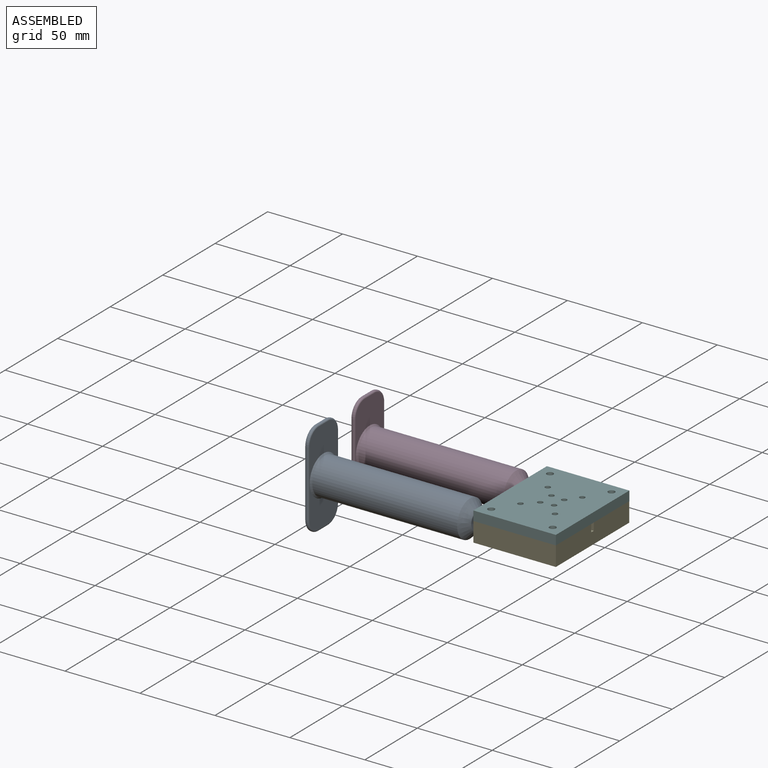
[diagram: assembled view]
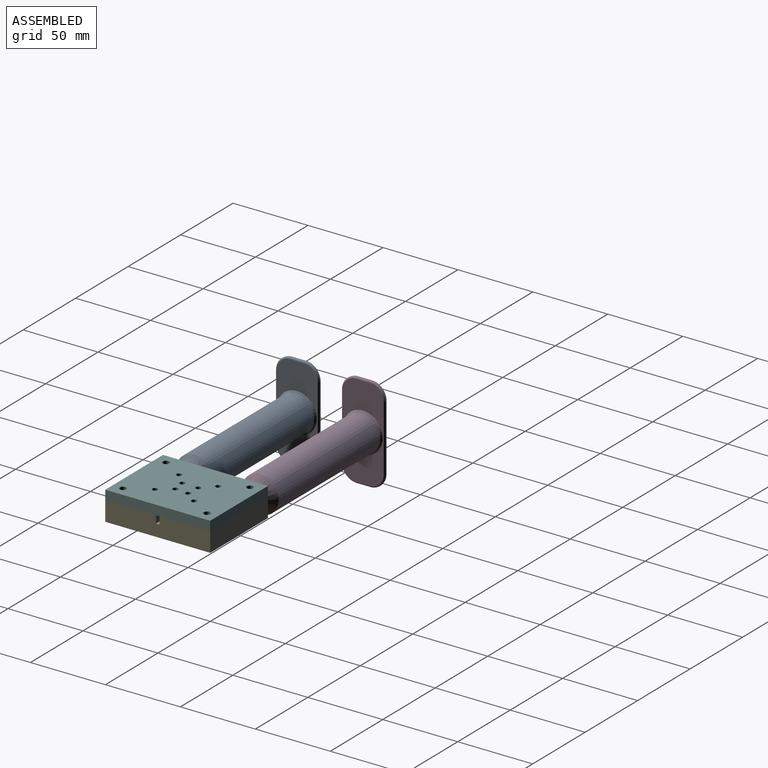
[diagram: assembled view, second angle]
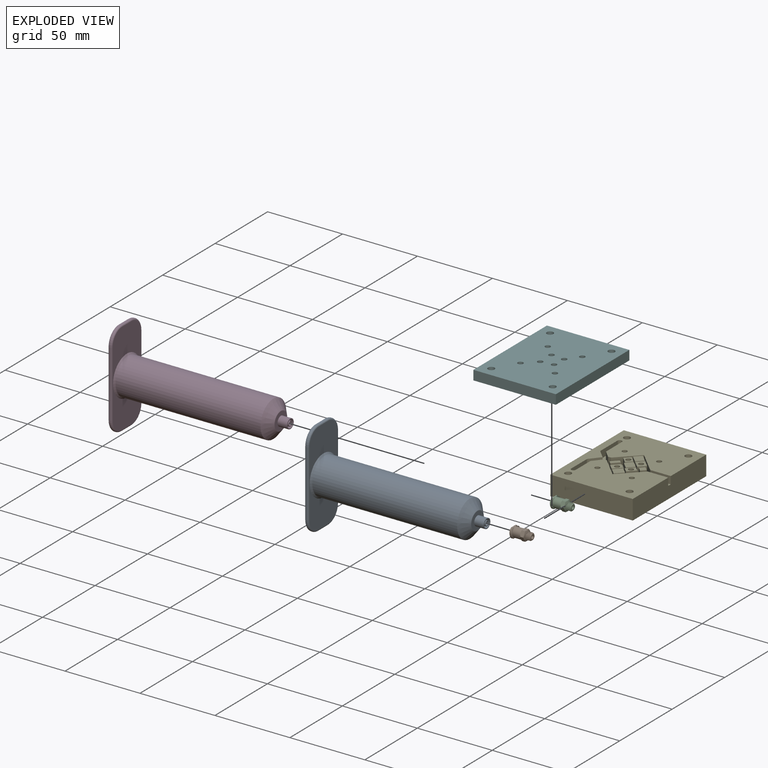
[diagram: exploded view]
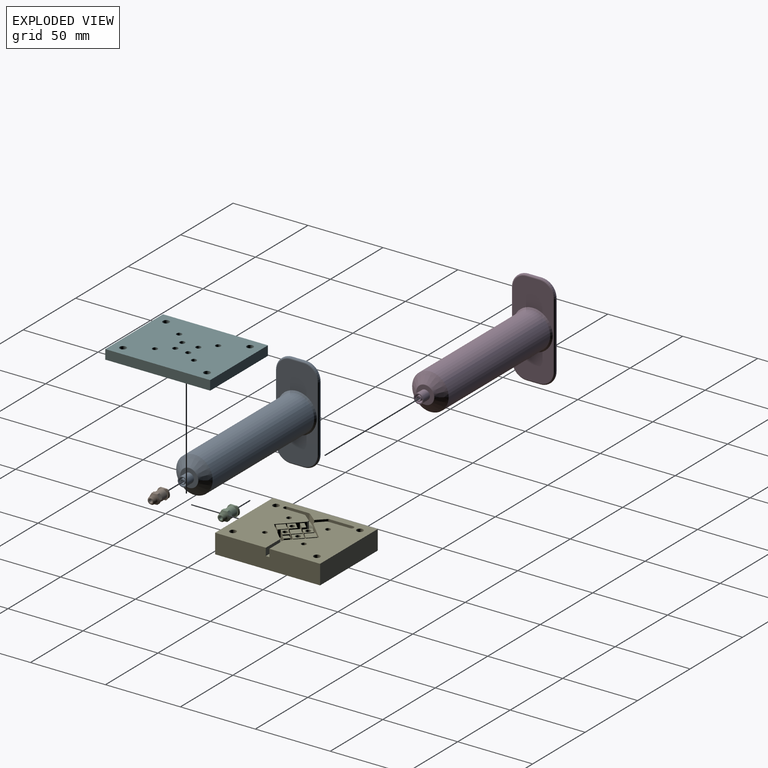
[diagram: exploded view, second angle]
ASSEMBLY  parts=6 mates=5
PART A: 43 faces, bbox 65.7x111.6x30.6 mm
  f0: cylinder r=9.65mm len=98.02mm, axis (0,1,0), area 5944.5mm2, adj f1,f40
  f1: cone r=5.15mm half-angle=50.7deg, axis (0,-1,0), area 270.4mm2, adj f0,f2
  f2: plane 10.3x10.3mm, normal (0,-1,0), area 83.3mm2, adj f1
  f3: plane 8.96x0.5mm, normal (-1,0,0), area 4.5mm2, adj f4,f10,f25,f38
  f4: cylinder r=10mm len=10mm, axis (0,1,0), area 7.9mm2, adj f3,f5,f27,f36
  f5: plane 44.08x0.5mm, normal (0,0,-1), area 22mm2, adj f4,f6,f29,f34
  f6: cylinder r=10mm len=10mm, axis (0,1,0), area 7.9mm2, adj f5,f7,f31,f32
  f7: plane 8.96x0.5mm, normal (1,0,0), area 4.5mm2, adj f6,f8,f30,f33
  f8: cylinder r=10mm len=10mm, axis (0,1,0), area 7.9mm2, adj f7,f9,f28,f35
  f9: plane 44.08x0.5mm, normal (0,0,1), area 22mm2, adj f8,f10,f26,f37
  f10: cylinder r=10mm len=10mm, axis (0,1,0), area 7.9mm2, adj f3,f9,f24,f39
  f11: plane 62.08x26.96mm, normal (0,-1,0), area 1247.5mm2, adj f32,f33,f34,f35,f36,f37,f38,f39
  f12: plane 62.08x26.96mm, normal (0,1,0), area 1057.3mm2, adj f24,f25,f26,f27,f28,f29,f30,f31
  f13: plane 11.76x11.76mm, normal (0,1,0), area 76.9mm2, adj f17,f41
  f14: cone r=12.19mm half-angle=50.7deg, axis (0,-1,0), area 447.5mm2, adj f15,f41
  f15: cylinder r=12.19mm len=96.72mm, axis (0,1,0), area 7409.5mm2, adj f14,f42
  f16: cylinder r=2.61mm len=6.35mm, axis (0,-1,0), area 104.3mm2, adj f18,f19
  f17: cylinder r=3.17mm len=6.35mm, axis (0,-1,0), area 126.7mm2, adj f13,f18
  f18: plane 6.35x6.35mm, normal (0,1,0), area 10.2mm2, adj f16,f17
  f19: plane 5.23x5.23mm, normal (0,1,0), area 12.6mm2, adj f16,f21
  f20: cylinder r=1.19mm len=6.35mm, axis (0,-1,0), area 47.6mm2, adj f22,f23
  f21: cylinder r=1.68mm len=6.35mm, axis (0,-1,0), area 67mm2, adj f19,f22
  f22: plane 3.36x3.36mm, normal (0,1,0), area 4.4mm2, adj f20,f21
  f23: plane 2.39x2.39mm, normal (0,1,0), area 4.5mm2, adj f20
  f24: torus R=9mm, axis (0,-1,0), area 23.8mm2, adj f10,f12,f25,f26
  f25: cylinder r=1mm len=8.96mm, axis (0,0,-1), area 14.1mm2, adj f3,f12,f24,f27
  f26: cylinder r=1mm len=44.08mm, axis (-1,0,0), area 69.2mm2, adj f9,f12,f24,f28
  f27: torus R=9mm, axis (0,-1,0), area 23.8mm2, adj f4,f12,f25,f29
  f28: torus R=9mm, axis (0,-1,0), area 23.8mm2, adj f8,f12,f26,f30
  f29: cylinder r=1mm len=44.08mm, axis (1,0,0), area 69.2mm2, adj f5,f12,f27,f31
  f30: cylinder r=1mm len=8.96mm, axis (0,0,1), area 14.1mm2, adj f7,f12,f28,f31
  f31: torus R=9mm, axis (0,-1,0), area 23.8mm2, adj f6,f12,f29,f30
  f32: torus R=9mm, axis (0,-1,0), area 23.8mm2, adj f6,f11,f33,f34
  f33: cylinder r=1mm len=8.96mm, axis (0,0,-1), area 14.1mm2, adj f7,f11,f32,f35
  f34: cylinder r=1mm len=44.08mm, axis (-1,0,0), area 69.2mm2, adj f5,f11,f32,f36
  f35: torus R=9mm, axis (0,-1,0), area 23.8mm2, adj f8,f11,f33,f37
  f36: torus R=9mm, axis (0,-1,0), area 23.8mm2, adj f4,f11,f34,f38
  f37: cylinder r=1mm len=44.08mm, axis (1,0,0), area 69.2mm2, adj f9,f11,f35,f39
  f38: cylinder r=1mm len=8.96mm, axis (0,0,1), area 14.1mm2, adj f3,f11,f36,f39
  f39: torus R=9mm, axis (0,-1,0), area 23.8mm2, adj f10,f11,f37,f38
  f40: torus R=10.65mm, axis (0,-1,0), area 98.8mm2, adj f0,f11
  f41: torus R=5.88mm, axis (0,1,0), area 13mm2, adj f13,f14
  f42: cone r=13.19mm half-angle=45deg, axis (0,-1,0), area 112.8mm2, adj f12,f15
PART B: 47 faces, bbox 8.8x14.1x8.4 mm
  f0: bspline ~4.83x4.83mm, area 33.9mm2, adj f1,f2,f3,f11,f12
  f1: bspline ~4.83x4.83mm, area 34mm2, adj f0,f2,f3,f11,f12
  f2: cylinder r=1.81mm len=3.62mm, axis (0,-1,0), area 4.5mm2, adj f0,f1,f3,f12
  f3: cone r=1.81mm half-angle=45deg, axis (0,-1,0), area 4.7mm2, adj f0,f1,f2,f4
  f4: plane 3.62x3.62mm, normal (0,1,0), area 5.8mm2, adj f3,f40
  f5: plane 3.53x3.01mm, normal (-0.87,0,0.5), area 8.9mm2, adj f6,f10,f11,f14,f15
  f6: plane 4.03x3.01mm, normal (0,0,1), area 8.9mm2, adj f5,f7,f11,f13,f14
  f7: plane 3.53x3.01mm, normal (0.87,0,0.5), area 8.9mm2, adj f6,f8,f11,f13,f18
  f8: plane 3.53x3.01mm, normal (0.87,0,-0.5), area 8.9mm2, adj f7,f9,f11,f17,f18
  f9: plane 4.03x3.01mm, normal (0,0,-1), area 8.9mm2, adj f8,f10,f11,f16,f17
  f10: plane 3.53x3.01mm, normal (-0.87,0,-0.5), area 8.9mm2, adj f5,f9,f11,f15,f16
  f11: cone r=3.67mm half-angle=70deg, axis (0,-1,0), area 21.5mm2, adj f0,f1,f5,f6,f7,f8,f9,f10
  f12: plane 4.25x2.77mm, normal (0,1,0), area 1.1mm2, adj f0,f1,f2,f11
  f13: cone r=3.17mm half-angle=45deg, axis (0,1,0), area 1.2mm2, adj f6,f7,f19
  f14: cone r=3.17mm half-angle=45deg, axis (0,1,0), area 1.2mm2, adj f5,f6,f19
  f15: cone r=3.17mm half-angle=45deg, axis (0,1,0), area 1.2mm2, adj f5,f10,f19
  f16: cone r=3.17mm half-angle=45deg, axis (0,1,0), area 1.2mm2, adj f9,f10,f19
  f17: cone r=3.17mm half-angle=45deg, axis (0,1,0), area 1.2mm2, adj f8,f9,f19
  f18: cone r=3.17mm half-angle=45deg, axis (0,1,0), area 1.2mm2, adj f7,f8,f19
  f19: cylinder r=3.17mm len=6.35mm, axis (0,1,0), area 98.8mm2, adj f13,f14,f15,f16,f17,f18,f29,f32
  f20: cylinder r=0.76mm len=1.11mm, axis (0,-1,0), area 0.6mm2, adj f25,f28,f31,f34
  f21: cylinder r=0.76mm len=1.19mm, axis (0,-1,0), area 0.6mm2, adj f24,f34,f35,f37
  f22: cylinder r=0.76mm len=0.73mm, axis (0,-1,0), area 0.4mm2, adj f24,f27,f32,f36
  f23: cylinder r=0.76mm len=0.65mm, axis (0,-1,0), area 0.3mm2, adj f25,f30,f31,f33
  f24: plane 4.5x1.67mm, normal (0,0,1), area 4.7mm2, adj f21,f22,f27,f32,f35,f37
  f25: plane 4.5x1.59mm, normal (0,0,-1), area 4.4mm2, adj f20,f23,f28,f31,f33
  f26: plane 1.9x0.29mm, normal (0,0,-1), area 0.1mm2, adj f27,f32
  f27: bspline ~8.03x4.22mm, area 6.9mm2, adj f22,f24,f26,f29,f32,f36
  f28: bspline ~6.83x4.22mm, area 4mm2, adj f20,f25,f29,f34,f37
  f29: cylinder r=3.17mm len=6.35mm, axis (0,1,0), area 6.4mm2, adj f19,f27,f28,f31,f33,f35
  f30: cylinder r=3.94mm len=4.74mm, axis (0,-1,0), area 1.4mm2, adj f23,f31,f33
  f31: plane 7.86x6.53mm, normal (0,-1,0), area 25.8mm2, adj f20,f23,f25,f29,f30,f33,f34,f35
  f32: plane 6.39x3.98mm, normal (0,1,0), area 5.9mm2, adj f19,f22,f24,f26,f27,f36
  f33: bspline ~8.03x5.46mm, area 6.3mm2, adj f23,f25,f29,f30,f31
  f34: cylinder r=3.94mm len=5.98mm, axis (0,-1,0), area 8.5mm2, adj f20,f21,f28,f31,f35,f37
  f35: bspline ~6.07x5.03mm, area 3.3mm2, adj f21,f24,f29,f31,f34
  f36: cylinder r=3.94mm len=5.45mm, axis (0,-1,0), area 1.9mm2, adj f22,f27,f32
  f37: plane 4.42x3.74mm, normal (0,1,0), area 2.7mm2, adj f19,f21,f24,f28,f34
  f38: cone r=2.16mm half-angle=1deg, axis (0,-1,0), area 93.7mm2, adj f31,f39
  f39: plane 4.07x4.07mm, normal (0,-1,0), area 8.5mm2, adj f38,f40
  f40: cylinder r=1.19mm len=5.74mm, axis (0,1,0), area 43.1mm2, adj f4,f39
  f41: plane 0.25x0.22mm, normal (-1,0,0), area 0mm2, adj f42,f43,f44,f45,f46
  f42: cylinder r=1.81mm len=1.47mm, axis (0,-1,0), area 0.1mm2, adj f41,f43,f44,f45
  f43: cylinder r=3.49mm len=0.3mm, axis (0.19,-0.5,0.84), area 0mm2, adj f41,f42,f45
  f44: bspline ~3.2x2.46mm, area 0.7mm2, adj f41,f42,f45,f46
  f45: plane 2.83x2.08mm, normal (0,-1,0), area 0.6mm2, adj f41,f42,f43,f44,f46
  f46: cone r=2.16mm half-angle=1deg, axis (0,-1,0), area 0.5mm2, adj f41,f44,f45
PART C: same geometry as B
PART D: same geometry as A
PART E: 145 faces, bbox 55.3x70.3x13.3 mm
  f0: cylinder r=1.63mm len=9.83mm, axis (0,0,1), area 100.7mm2, adj f64,f140
  f1: cylinder r=1.63mm len=9.83mm, axis (0,0,1), area 100.7mm2, adj f54,f133
  f2: cylinder r=1.63mm len=9.83mm, axis (0,0,1), area 100.7mm2, adj f39,f126
  f3: cylinder r=1.63mm len=9.83mm, axis (0,0,1), area 100.7mm2, adj f29,f119
  f4: cylinder r=1.63mm len=9.83mm, axis (0,0,1), area 100.7mm2, adj f11,f112
  f5: cylinder r=1.63mm len=9.83mm, axis (0,0,1), area 100.7mm2, adj f11,f105
  f6: cylinder r=1.63mm len=9.83mm, axis (0,0,1), area 100.7mm2, adj f11,f98
  f7: cylinder r=1.63mm len=9.83mm, axis (0,0,1), area 100.7mm2, adj f11,f91
  f8: plane 70x13mm, normal (1,0,0), area 898mm2, adj f11,f18,f19,f21,f22,f83,f84
  f9: plane 13.8x13.8mm, normal (-0.71,-0.71,0), area 97.6mm2, adj f11,f18,f23,f83
  f10: plane 12.98x12.98mm, normal (0.71,0.71,0), area 91.8mm2, adj f11,f18,f24,f81
  f11: plane 70x55mm, normal (0,0,1), area 3122.8mm2, adj f4,f5,f6,f7,f8,f9,f10,f19
  f12: plane 5x2.56mm, normal (0.71,-0.71,0), area 18.1mm2, adj f18,f66,f67,f82
  f13: plane 5x2.56mm, normal (0.71,0.71,0), area 18.1mm2, adj f18,f65,f67,f82
  f14: cone r=0mm half-angle=59deg, axis (-1,0,0), area 14.1mm2, adj f15,f18
  f15: cylinder r=2.02mm len=6.5mm, axis (-1,0,0), area 78.2mm2, adj f14,f18,f20,f71,f72
  f16: cone r=0mm half-angle=59deg, axis (-1,0,0), area 14.1mm2, adj f17,f18
  f17: cylinder r=2.02mm len=6.5mm, axis (-1,0,0), area 78.2mm2, adj f16,f18,f20,f77,f78
  f18: plane 50.49x47.34mm, normal (0,0,1), area 372.7mm2, adj f8,f9,f10,f12,f13,f14,f15,f16
  f19: plane 55x13mm, normal (0,1,0), area 715mm2, adj f8,f11,f20,f22
  f20: plane 70x13mm, normal (-1,0,0), area 884.4mm2, adj f11,f15,f17,f19,f21,f22
  f21: plane 55x13mm, normal (0,-1,0), area 715mm2, adj f8,f11,f20,f22
  f22: plane 70x55mm, normal (0,0,-1), area 3502.3mm2, adj f8,f19,f20,f21,f85,f86,f87,f88
  f23: plane 12.98x12.98mm, normal (0.71,-0.71,0), area 91.8mm2, adj f9,f11,f18,f68
  f24: plane 13.8x13.8mm, normal (-0.71,0.71,0), area 97.6mm2, adj f10,f11,f18,f84
  f25: plane 5x3.94mm, normal (0.71,0.71,0), area 27.9mm2, adj f18,f26,f28,f29
  f26: plane 5x3.38mm, normal (-0.71,0.71,0), area 23.9mm2, adj f18,f25,f27,f29
  f27: plane 5x3.94mm, normal (-0.71,-0.71,0), area 27.8mm2, adj f18,f26,f28,f29
  f28: plane 5x3.38mm, normal (0.71,-0.71,0), area 23.9mm2, adj f18,f25,f27,f29
  f29: plane 7.31x7.31mm, normal (0,0,1), area 18.2mm2, adj f3,f25,f26,f27,f28
  f30: plane 5x4.15mm, normal (0.71,-0.71,0), area 29.4mm2, adj f18,f31,f33,f34
  f31: plane 5x1.82mm, normal (0.71,0.71,0), area 12.9mm2, adj f18,f30,f32,f34
  f32: plane 5x4.15mm, normal (-0.71,0.71,0), area 29.3mm2, adj f18,f31,f33,f34
  f33: plane 5x1.82mm, normal (-0.71,-0.71,0), area 12.9mm2, adj f18,f30,f32,f34
  f34: plane 5.97x5.97mm, normal (0,0,1), area 15.1mm2, adj f30,f31,f32,f33
  f35: plane 5x3.38mm, normal (0.71,0.71,0), area 23.9mm2, adj f18,f36,f38,f39
  f36: plane 5x4.49mm, normal (-0.71,0.71,0), area 31.7mm2, adj f18,f35,f37,f39
  f37: plane 5x3.38mm, normal (-0.71,-0.71,0), area 23.9mm2, adj f18,f36,f38,f39
  f38: plane 5x4.49mm, normal (0.71,-0.71,0), area 31.7mm2, adj f18,f35,f37,f39
  f39: plane 7.87x7.87mm, normal (0,0,1), area 21.9mm2, adj f2,f35,f36,f37,f38
  f40: plane 5x4.47mm, normal (0.71,0.71,0), area 31.6mm2, adj f18,f41,f43,f44
  f41: plane 5x3.94mm, normal (-0.71,0.71,0), area 27.9mm2, adj f18,f40,f42,f44
  f42: plane 5x4.47mm, normal (-0.71,-0.71,0), area 31.6mm2, adj f18,f41,f43,f44
  f43: plane 5x3.94mm, normal (0.71,-0.71,0), area 27.9mm2, adj f18,f40,f42,f44
  f44: plane 8.41x8.41mm, normal (0,0,1), area 35.2mm2, adj f40,f41,f42,f43
  f45: plane 5x3.94mm, normal (0.71,-0.71,0), area 27.9mm2, adj f18,f46,f48,f49
  f46: plane 5x4.47mm, normal (0.71,0.71,0), area 31.6mm2, adj f18,f45,f47,f49
  f47: plane 5x3.94mm, normal (-0.71,0.71,0), area 27.9mm2, adj f18,f46,f48,f49
  f48: plane 5x4.47mm, normal (-0.71,-0.71,0), area 31.6mm2, adj f18,f45,f47,f49
  f49: plane 8.41x8.41mm, normal (0,0,1), area 35.2mm2, adj f45,f46,f47,f48
  f50: plane 5x3.94mm, normal (-0.71,0.71,0), area 27.9mm2, adj f18,f51,f53,f54
  f51: plane 5x4.47mm, normal (-0.71,-0.71,0), area 31.6mm2, adj f18,f50,f52,f54
  f52: plane 5x3.94mm, normal (0.71,-0.71,0), area 27.9mm2, adj f18,f51,f53,f54
  f53: plane 5x4.47mm, normal (0.71,0.71,0), area 31.6mm2, adj f18,f50,f52,f54
  f54: plane 8.41x8.41mm, normal (0,0,1), area 26.9mm2, adj f1,f50,f51,f52,f53
  f55: plane 5x3.94mm, normal (0.71,0.71,0), area 27.9mm2, adj f18,f56,f58,f59
  f56: plane 5x4.47mm, normal (-0.71,0.71,0), area 31.6mm2, adj f18,f55,f57,f59
  f57: plane 5x3.94mm, normal (-0.71,-0.71,0), area 27.9mm2, adj f18,f56,f58,f59
  f58: plane 5x4.47mm, normal (0.71,-0.71,0), area 31.6mm2, adj f18,f55,f57,f59
  f59: plane 8.41x8.41mm, normal (0,0,1), area 35.2mm2, adj f55,f56,f57,f58
  f60: plane 5x4.47mm, normal (0.71,-0.71,0), area 31.6mm2, adj f18,f61,f63,f64
  f61: plane 5x2.84mm, normal (0.71,0.71,0), area 20.1mm2, adj f18,f60,f62,f64
  f62: plane 5x4.47mm, normal (-0.71,0.71,0), area 31.6mm2, adj f18,f61,f63,f64
  f63: plane 5x2.84mm, normal (-0.71,-0.71,0), area 20.1mm2, adj f18,f60,f62,f64
  f64: plane 7.31x7.31mm, normal (0,0,1), area 17.1mm2, adj f0,f60,f61,f62,f63
  f65: plane 5x2.64mm, normal (-0.71,0.71,0), area 18.7mm2, adj f13,f18,f66,f67
  f66: plane 5x2.64mm, normal (-0.71,-0.71,0), area 18.7mm2, adj f12,f18,f65,f67
  f67: plane 5.28x5.2mm, normal (0,0,1), area 13.9mm2, adj f12,f13,f65,f66,f82
  f68: plane 5x1.92mm, normal (0,-1,0), area 9.6mm2, adj f11,f18,f23,f69
  f69: plane 5x4.75mm, normal (-0.71,-0.71,0), area 33.6mm2, adj f11,f18,f68,f70
  f70: plane 15.23x5mm, normal (-1,0,0), area 76.1mm2, adj f11,f18,f69,f71
  f71: cylinder r=1.5mm len=5mm, axis (0,0,1), area 23.1mm2, adj f11,f15,f18,f70,f72
  f72: plane 15.85x5mm, normal (1,0,0), area 78.8mm2, adj f11,f15,f18,f71,f73
  f73: cylinder r=1.5mm len=5mm, axis (0,0,1), area 5.9mm2, adj f11,f18,f72,f74
  f74: plane 5.19x5.19mm, normal (0.71,0.71,0), area 36.7mm2, adj f11,f18,f73,f75
  f75: plane 6.45x5.29mm, normal (0.77,-0.63,0), area 41.7mm2, adj f11,f18,f74,f76
  f76: cylinder r=1.5mm len=5mm, axis (0,0,1), area 5.2mm2, adj f11,f18,f75,f77
  f77: plane 14.5x5mm, normal (1,0,0), area 72mm2, adj f11,f17,f18,f76,f78
  f78: cylinder r=1.5mm len=5mm, axis (0,0,1), area 23.1mm2, adj f11,f17,f18,f77,f79
  f79: plane 13.96x5mm, normal (-1,0,0), area 69.8mm2, adj f11,f18,f78,f80
  f80: plane 6.01x5mm, normal (-0.77,0.63,0), area 38.9mm2, adj f11,f18,f79,f81
  f81: plane 5x1.74mm, normal (0,1,0), area 8.7mm2, adj f10,f11,f18,f80
  f82: cylinder r=1.2mm len=5mm, axis (0,0,1), area 0.8mm2, adj f12,f13,f18,f67
  f83: plane 13.7x5mm, normal (0,-1,0), area 68.5mm2, adj f8,f9,f11,f18
  f84: plane 13.7x5mm, normal (0,1,0), area 68.5mm2, adj f8,f11,f18,f24
  f85: plane 3.72x3.18mm, normal (0,-1,0), area 11.8mm2, adj f22,f86,f90,f91
  f86: plane 3.23x3.18mm, normal (-0.87,-0.5,0), area 11.8mm2, adj f22,f85,f87,f91
  f87: plane 3.23x3.18mm, normal (-0.87,0.5,0), area 11.8mm2, adj f22,f86,f88,f91
  f88: plane 3.72x3.18mm, normal (0,1,0), area 11.8mm2, adj f22,f87,f89,f91
  f89: plane 3.23x3.18mm, normal (0.87,0.5,0), area 11.8mm2, adj f22,f88,f90,f91
  f90: plane 3.23x3.18mm, normal (0.87,-0.5,0), area 11.8mm2, adj f22,f85,f89,f91
  f91: plane 7.45x6.45mm, normal (0,0,-1), area 27.7mm2, adj f7,f85,f86,f87,f88,f89,f90
  f92: plane 3.72x3.18mm, normal (0,-1,0), area 11.8mm2, adj f22,f93,f97,f98
  f93: plane 3.23x3.18mm, normal (-0.87,-0.5,0), area 11.8mm2, adj f22,f92,f94,f98
  f94: plane 3.23x3.18mm, normal (-0.87,0.5,0), area 11.8mm2, adj f22,f93,f95,f98
  f95: plane 3.72x3.18mm, normal (0,1,0), area 11.8mm2, adj f22,f94,f96,f98
  f96: plane 3.23x3.18mm, normal (0.87,0.5,0), area 11.8mm2, adj f22,f95,f97,f98
  f97: plane 3.23x3.18mm, normal (0.87,-0.5,0), area 11.8mm2, adj f22,f92,f96,f98
  f98: plane 7.45x6.45mm, normal (0,0,-1), area 27.7mm2, adj f6,f92,f93,f94,f95,f96,f97
  f99: plane 3.72x3.18mm, normal (0,-1,0), area 11.8mm2, adj f22,f100,f104,f105
  f100: plane 3.23x3.18mm, normal (-0.87,-0.5,0), area 11.8mm2, adj f22,f99,f101,f105
  f101: plane 3.23x3.18mm, normal (-0.87,0.5,0), area 11.8mm2, adj f22,f100,f102,f105
  f102: plane 3.72x3.18mm, normal (0,1,0), area 11.8mm2, adj f22,f101,f103,f105
  f103: plane 3.23x3.18mm, normal (0.87,0.5,0), area 11.8mm2, adj f22,f102,f104,f105
  f104: plane 3.23x3.18mm, normal (0.87,-0.5,0), area 11.8mm2, adj f22,f99,f103,f105
  f105: plane 7.45x6.45mm, normal (0,0,-1), area 27.7mm2, adj f5,f99,f100,f101,f102,f103,f104
  f106: plane 3.72x3.18mm, normal (0,-1,0), area 11.8mm2, adj f22,f107,f111,f112
  f107: plane 3.23x3.18mm, normal (-0.87,-0.5,0), area 11.8mm2, adj f22,f106,f108,f112
  f108: plane 3.23x3.18mm, normal (-0.87,0.5,0), area 11.8mm2, adj f22,f107,f109,f112
  f109: plane 3.72x3.18mm, normal (0,1,0), area 11.8mm2, adj f22,f108,f110,f112
  f110: plane 3.23x3.18mm, normal (0.87,0.5,0), area 11.8mm2, adj f22,f109,f111,f112
  f111: plane 3.23x3.18mm, normal (0.87,-0.5,0), area 11.8mm2, adj f22,f106,f110,f112
  f112: plane 7.45x6.45mm, normal (0,0,-1), area 27.7mm2, adj f4,f106,f107,f108,f109,f110,f111
  f113: plane 3.72x3.18mm, normal (0,-1,0), area 11.8mm2, adj f22,f114,f118,f119
  f114: plane 3.23x3.18mm, normal (-0.87,-0.5,0), area 11.8mm2, adj f22,f113,f115,f119
  f115: plane 3.23x3.18mm, normal (-0.87,0.5,0), area 11.8mm2, adj f22,f114,f116,f119
  f116: plane 3.72x3.18mm, normal (0,1,0), area 11.8mm2, adj f22,f115,f117,f119
  f117: plane 3.23x3.18mm, normal (0.87,0.5,0), area 11.8mm2, adj f22,f116,f118,f119
  f118: plane 3.23x3.18mm, normal (0.87,-0.5,0), area 11.8mm2, adj f22,f113,f117,f119
  f119: plane 7.45x6.45mm, normal (0,0,-1), area 27.7mm2, adj f3,f113,f114,f115,f116,f117,f118
  f120: plane 3.72x3.18mm, normal (0,-1,0), area 11.8mm2, adj f22,f121,f125,f126
  f121: plane 3.23x3.18mm, normal (-0.87,-0.5,0), area 11.8mm2, adj f22,f120,f122,f126
  f122: plane 3.23x3.18mm, normal (-0.87,0.5,0), area 11.8mm2, adj f22,f121,f123,f126
  f123: plane 3.72x3.18mm, normal (0,1,0), area 11.8mm2, adj f22,f122,f124,f126
  f124: plane 3.23x3.18mm, normal (0.87,0.5,0), area 11.8mm2, adj f22,f123,f125,f126
  f125: plane 3.23x3.18mm, normal (0.87,-0.5,0), area 11.8mm2, adj f22,f120,f124,f126
  f126: plane 7.45x6.45mm, normal (0,0,-1), area 27.7mm2, adj f2,f120,f121,f122,f123,f124,f125
  f127: plane 3.72x3.18mm, normal (0,-1,0), area 11.8mm2, adj f22,f128,f132,f133
  f128: plane 3.23x3.18mm, normal (-0.87,-0.5,0), area 11.8mm2, adj f22,f127,f129,f133
  f129: plane 3.23x3.18mm, normal (-0.87,0.5,0), area 11.8mm2, adj f22,f128,f130,f133
  f130: plane 3.72x3.18mm, normal (0,1,0), area 11.8mm2, adj f22,f129,f131,f133
  f131: plane 3.23x3.18mm, normal (0.87,0.5,0), area 11.8mm2, adj f22,f130,f132,f133
  f132: plane 3.23x3.18mm, normal (0.87,-0.5,0), area 11.8mm2, adj f22,f127,f131,f133
  f133: plane 7.45x6.45mm, normal (0,0,-1), area 27.7mm2, adj f1,f127,f128,f129,f130,f131,f132
  f134: plane 3.72x3.18mm, normal (0,-1,0), area 11.8mm2, adj f22,f135,f139,f140
  f135: plane 3.23x3.18mm, normal (-0.87,-0.5,0), area 11.8mm2, adj f22,f134,f136,f140
  f136: plane 3.23x3.18mm, normal (-0.87,0.5,0), area 11.8mm2, adj f22,f135,f137,f140
  f137: plane 3.72x3.18mm, normal (0,1,0), area 11.8mm2, adj f22,f136,f138,f140
  f138: plane 3.23x3.18mm, normal (0.87,0.5,0), area 11.8mm2, adj f22,f137,f139,f140
  f139: plane 3.23x3.18mm, normal (0.87,-0.5,0), area 11.8mm2, adj f22,f134,f138,f140
  f140: plane 7.45x6.45mm, normal (0,0,-1), area 27.7mm2, adj f0,f134,f135,f136,f137,f138,f139
  f141: cylinder r=2.17mm len=13mm, axis (0,0,1), area 177.7mm2, adj f11,f22
  f142: cylinder r=2.17mm len=13mm, axis (0,0,1), area 177.7mm2, adj f11,f22
  f143: cylinder r=2.17mm len=13mm, axis (0,0,1), area 177.7mm2, adj f11,f22
  f144: cylinder r=2.17mm len=13mm, axis (0,0,1), area 177.7mm2, adj f11,f22
PART F: 18 faces, bbox 55x70x6.4 mm
  f0: plane 55x6.35mm, normal (0,-1,0), area 349.2mm2, adj f1,f10,f12,f13
  f1: plane 70x6.35mm, normal (1,0,0), area 444.5mm2, adj f0,f2,f12,f13
  f2: plane 55x6.35mm, normal (0,1,0), area 349.2mm2, adj f1,f10,f12,f13
  f3: cylinder r=1.75mm len=6.35mm, axis (0,0,-1), area 69.8mm2, adj f12,f13
  f4: cylinder r=1.75mm len=6.35mm, axis (0,0,-1), area 69.8mm2, adj f12,f13
  f5: cylinder r=1.75mm len=6.35mm, axis (0,0,-1), area 69.8mm2, adj f12,f13
  f6: cylinder r=1.75mm len=6.35mm, axis (0,0,-1), area 69.8mm2, adj f12,f13
  f7: cylinder r=1.75mm len=6.35mm, axis (0,0,-1), area 69.8mm2, adj f12,f13
  f8: cylinder r=1.75mm len=6.35mm, axis (0,0,-1), area 69.8mm2, adj f12,f13
  f9: cylinder r=1.75mm len=6.35mm, axis (0,0,-1), area 69.8mm2, adj f12,f13
  f10: plane 70x6.35mm, normal (-1,0,0), area 444.5mm2, adj f0,f2,f12,f13
  f11: cylinder r=1.75mm len=6.35mm, axis (0,0,-1), area 69.8mm2, adj f12,f13
  f12: plane 70x55mm, normal (0,0,1), area 3713.6mm2, adj f0,f1,f2,f3,f4,f5,f6,f7
  f13: plane 70x55mm, normal (0,0,-1), area 3713.6mm2, adj f0,f1,f2,f3,f4,f5,f6,f7
  f14: cylinder r=2.17mm len=6.35mm, axis (0,0,-1), area 86.8mm2, adj f12,f13
  f15: cylinder r=2.17mm len=6.35mm, axis (0,0,-1), area 86.8mm2, adj f12,f13
  f16: cylinder r=2.17mm len=6.35mm, axis (0,0,-1), area 86.8mm2, adj f12,f13
  f17: cylinder r=2.17mm len=6.35mm, axis (0,0,-1), area 86.8mm2, adj f12,f13
PLACE A rot(axis=(0.58,0.58,-0.58),120deg) t=(-40.07,-22.86,31.52)mm
PLACE B rot(axis=(0.71,0.71,0),180deg) t=(-30.33,-22.86,31.52)mm
PLACE C rot(axis=(0.71,0.71,0),180deg) t=(-30.26,21.14,31.52)mm
PLACE D rot(axis=(0.58,0.58,-0.58),120deg) t=(-40.07,21.14,31.52)mm
PLACE E t=(0,-0.86,25.02)mm
PLACE F t=(0.01,-0.86,25.02)mm
MATE planar F.f13 <-> E.f44  axis (0,0,-1) through (0.01,-0.86,38.02)mm
MATE slider B.f2 <-> E.f16  axis (1,0,0) through (-24.08,-22.86,31.52)mm
MATE slider D.f16 <-> E.f14  axis (1,0,0) through (-27.5,21.14,31.52)mm
MATE slider A.f16 <-> E.f16  axis (1,0,0) through (-27.5,-22.86,31.52)mm
MATE slider C.f2 <-> E.f14  axis (1,0,0) through (-24.01,21.14,31.52)mm
